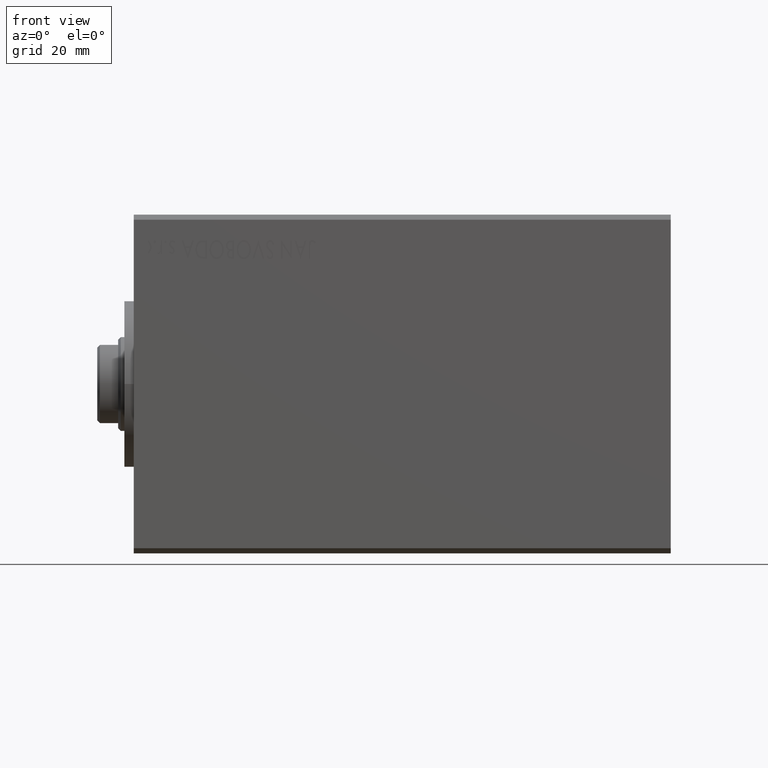
[diagram: clean part render]
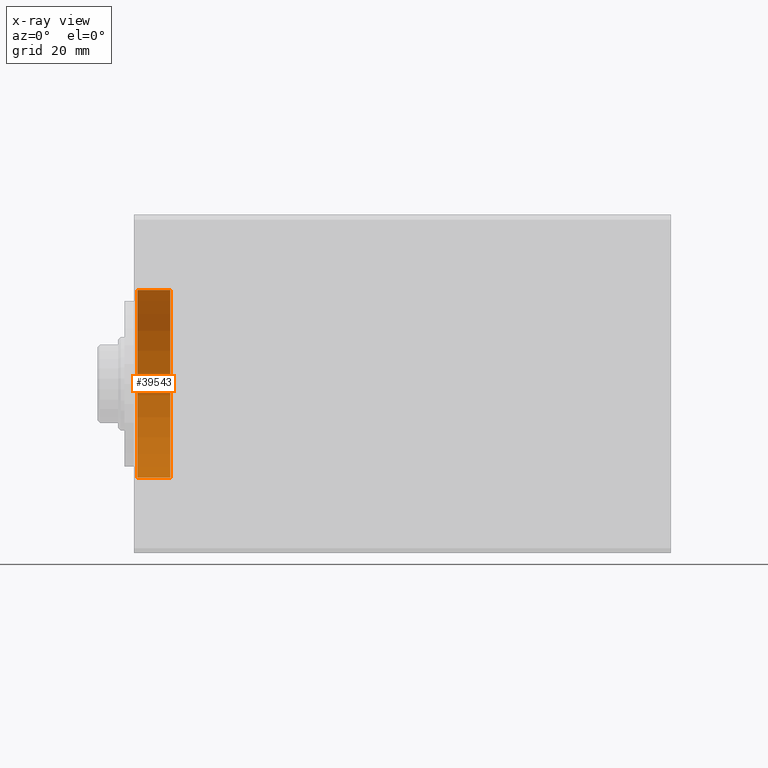
[diagram: x-ray — body ghosted, one internal face saturated and labeled with its STEP entity id]
A machine part, front view, then the same camera in x-ray: the body is ghosted and one INTERNAL B-rep face — a face not visible from any outside direction — is saturated and labeled: STEP entity #39543.
In plain terms, the highlighted cylindrical surface (partial cylindrical patch) has radius 18 mm, axis along (-1, -0, -0).
Its self-contained STEP definition (entity closure, byte-faithful):
#61 = DIRECTION ( 'NONE',  ( -1.000000000000000000, -0.000000000000000000, -0.000000000000000000 ) ) ;
#400 = LINE ( 'NONE', #27844, #10650 ) ;
#549 = ORIENTED_EDGE ( 'NONE', *, *, #36815, .F. ) ;
#792 = EDGE_CURVE ( 'NONE', #21830, #18710, #10229, .T. ) ;
#2961 = EDGE_LOOP ( 'NONE', ( #549, #17347, #42123, #43237 ) ) ;
#4340 = CARTESIAN_POINT ( 'NONE',  ( 0.6999999999999888534, 2.204364238465235428E-15, -18.00000000000000000 ) ) ;
#4658 = CARTESIAN_POINT ( 'NONE',  ( 7.000000000000000000, 0.000000000000000000, 0.000000000000000000 ) ) ;
#5832 = DIRECTION ( 'NONE',  ( -1.000000000000000000, 0.000000000000000000, 0.000000000000000000 ) ) ;
#5855 = AXIS2_PLACEMENT_3D ( 'NONE', #23192, #5832, #16355 ) ;
#9706 = DIRECTION ( 'NONE',  ( -1.000000000000000000, 0.000000000000000000, 0.000000000000000000 ) ) ;
#10146 = CARTESIAN_POINT ( 'NONE',  ( 7.000000000000000000, 0.000000000000000000, 0.000000000000000000 ) ) ;
#10229 = CIRCLE ( 'NONE', #5855, 18.00000000000000000 ) ;
#10650 = VECTOR ( 'NONE', #28063, 1000.000000000000000 ) ;
#11828 = EDGE_CURVE ( 'NONE', #28460, #21830, #21547, .T. ) ;
#16355 = DIRECTION ( 'NONE',  ( 0.000000000000000000, 0.000000000000000000, -1.000000000000000000 ) ) ;
#17347 = ORIENTED_EDGE ( 'NONE', *, *, #19989, .F. ) ;
#18605 = DIRECTION ( 'NONE',  ( -1.000000000000000000, -0.000000000000000000, -0.000000000000000000 ) ) ;
#18710 = VERTEX_POINT ( 'NONE', #4340 ) ;
#18839 = CYLINDRICAL_SURFACE ( 'NONE', #23096, 18.00000000000000000 ) ;
#19989 = EDGE_CURVE ( 'NONE', #28460, #44840, #37252, .T. ) ;
#20509 = AXIS2_PLACEMENT_3D ( 'NONE', #10146, #9706, #34143 ) ;
#21547 = LINE ( 'NONE', #24518, #38615 ) ;
#21830 = VERTEX_POINT ( 'NONE', #29522 ) ;
#23096 = AXIS2_PLACEMENT_3D ( 'NONE', #4658, #18605, #32759 ) ;
#23192 = CARTESIAN_POINT ( 'NONE',  ( 0.6999999999999888534, 0.000000000000000000, 0.000000000000000000 ) ) ;
#24518 = CARTESIAN_POINT ( 'NONE',  ( 7.000000000000000000, 0.000000000000000000, 18.00000000000000000 ) ) ;
#25634 = CARTESIAN_POINT ( 'NONE',  ( 7.000000000000000000, 0.000000000000000000, 18.00000000000000000 ) ) ;
#27844 = CARTESIAN_POINT ( 'NONE',  ( 7.000000000000000000, 2.204364238465235428E-15, -18.00000000000000000 ) ) ;
#28063 = DIRECTION ( 'NONE',  ( -1.000000000000000000, -0.000000000000000000, -0.000000000000000000 ) ) ;
#28460 = VERTEX_POINT ( 'NONE', #25634 ) ;
#29522 = CARTESIAN_POINT ( 'NONE',  ( 0.6999999999999888534, 0.000000000000000000, 18.00000000000000000 ) ) ;
#32759 = DIRECTION ( 'NONE',  ( 0.000000000000000000, 0.000000000000000000, 1.000000000000000000 ) ) ;
#33457 = CARTESIAN_POINT ( 'NONE',  ( 7.000000000000000000, 2.204364238465235428E-15, -18.00000000000000000 ) ) ;
#34143 = DIRECTION ( 'NONE',  ( 0.000000000000000000, 0.000000000000000000, 1.000000000000000000 ) ) ;
#35949 = FACE_OUTER_BOUND ( 'NONE', #2961, .T. ) ;
#36815 = EDGE_CURVE ( 'NONE', #44840, #18710, #400, .T. ) ;
#37252 = CIRCLE ( 'NONE', #20509, 18.00000000000000000 ) ;
#38615 = VECTOR ( 'NONE', #61, 1000.000000000000000 ) ;
#39543 = ADVANCED_FACE ( 'NONE', ( #35949 ), #18839, .F. ) ;
#42123 = ORIENTED_EDGE ( 'NONE', *, *, #11828, .T. ) ;
#43237 = ORIENTED_EDGE ( 'NONE', *, *, #792, .T. ) ;
#44840 = VERTEX_POINT ( 'NONE', #33457 ) ;